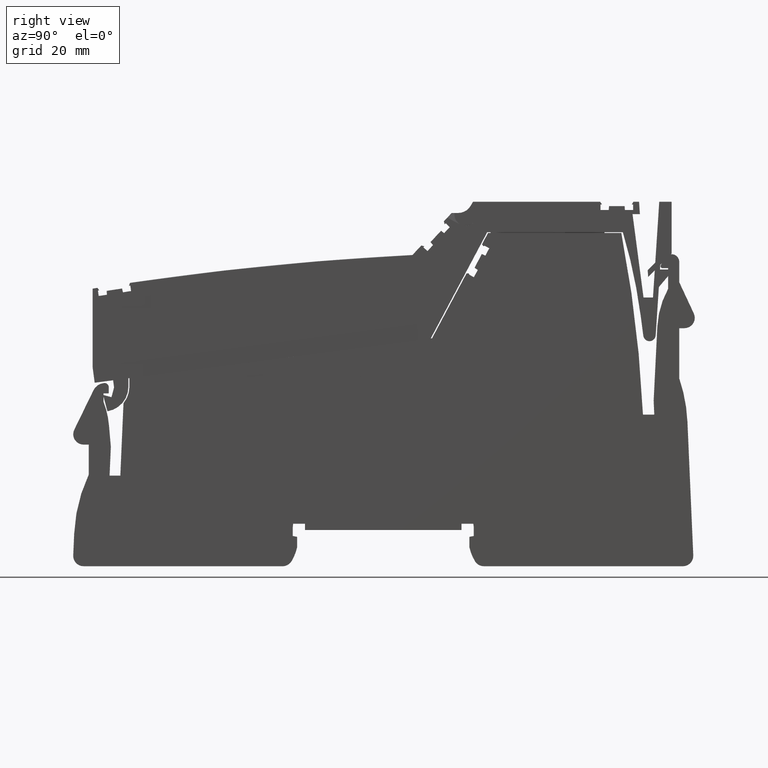
[diagram: clean part render]
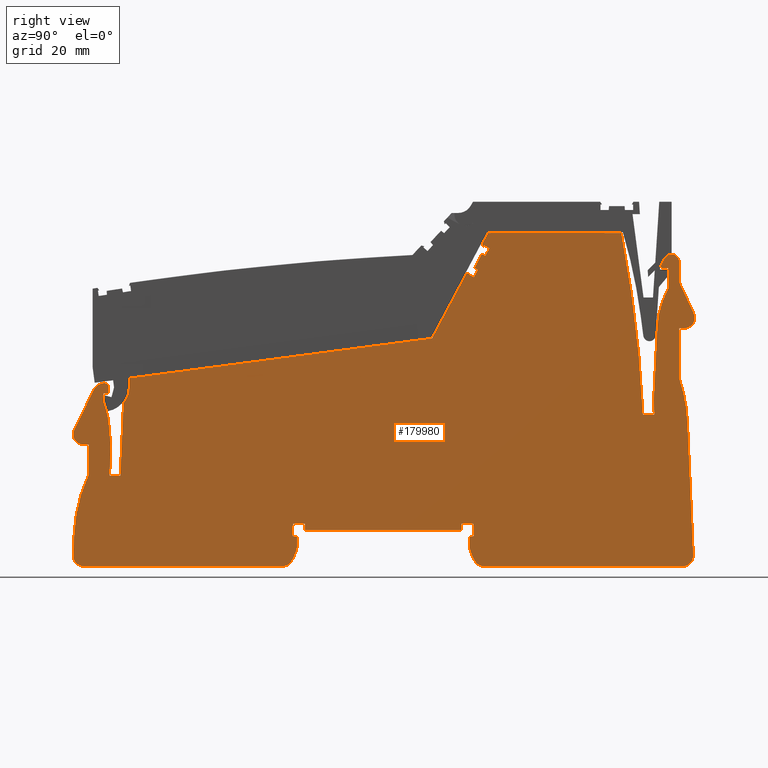
[diagram: same view with one face highlighted and labeled with its STEP entity id]
A machine part, right view. The second image highlights one B-rep face of the part: STEP entity #179980.
In plain terms, the highlighted planar face has unit normal (-1, 0, 0).
Its self-contained STEP definition (entity closure, byte-faithful):
#173810=CARTESIAN_POINT('',(241.895261249458,-27.1848492122465,12.15));
#173820=DIRECTION('',(0.,0.,-1.));
#173830=DIRECTION('',(-1.,1.05193631583234E-14,0.));
#173840=AXIS2_PLACEMENT_3D('',#173810,#173820,#173830);
#173850=PLANE('',#173840);
#173860=CARTESIAN_POINT('',(289.962081648071,-8.83061094931154E-13,12.15
));
#173870=DIRECTION('',(-0.42261826174069,0.906307787036654,
-3.12945253687874E-45));
#173880=VECTOR('',#173870,1.);
#173890=LINE('',#173860,#173880);
#173900=CARTESIAN_POINT('',(296.541235782933,-14.1090415733122,12.15));
#173910=VERTEX_POINT('',#173900);
#173920=CARTESIAN_POINT('',(293.72862020886,-8.07736800997913,12.15));
#173930=VERTEX_POINT('',#173920);
#173940=EDGE_CURVE('',#173910,#173930,#173890,.T.);
#173950=ORIENTED_EDGE('',*,*,#173940,.T.);
#173960=CARTESIAN_POINT('',(294.72862020886,-14.9542780967936,12.15));
#173970=DIRECTION('',(1.61619556307429E-58,1.53640057743941E-44,1.));
#173980=DIRECTION('',(1.,-1.05193631583234E-14,0.));
#173990=AXIS2_PLACEMENT_3D('',#173960,#173970,#173980);
#174000=CIRCLE('',#173990,2.);
#174010=CARTESIAN_POINT('',(294.72862020886,-16.9542780967936,12.15));
#174020=VERTEX_POINT('',#174010);
#174030=EDGE_CURVE('',#174020,#173910,#174000,.T.);
#174040=ORIENTED_EDGE('',*,*,#174030,.T.);
#174050=CARTESIAN_POINT('',(4.18507689651115E-13,-16.9542780967905,12.15
));
#174060=DIRECTION('',(1.,-1.05193631583234E-14,0.));
#174070=VECTOR('',#174060,1.);
#174080=LINE('',#174050,#174070);
#174090=CARTESIAN_POINT('',(293.72862020886,-16.9542780967935,12.15));
#174100=VERTEX_POINT('',#174090);
#174110=EDGE_CURVE('',#174100,#174020,#174080,.T.);
#174120=ORIENTED_EDGE('',*,*,#174110,.T.);
#174130=CARTESIAN_POINT('',(293.72862020886,-9.22682681901923E-13,12.15)
);
#174140=DIRECTION('',(-1.05193631583234E-14,-1.,3.45296882763315E-45));
#174150=VECTOR('',#174140,1.);
#174160=LINE('',#174130,#174150);
#174170=CARTESIAN_POINT('',(293.72862020886,-26.6633289582241,12.15));
#174180=VERTEX_POINT('',#174170);
#174190=EDGE_CURVE('',#174100,#174180,#174160,.T.);
#174200=ORIENTED_EDGE('',*,*,#174190,.F.);
#174210=CARTESIAN_POINT('',(265.338905386229,-36.3599310584288,12.15));
#174220=DIRECTION('',(1.61619556307429E-58,1.53640057743941E-44,1.));
#174230=DIRECTION('',(1.,-1.05193631583234E-14,0.));
#174240=AXIS2_PLACEMENT_3D('',#174210,#174220,#174230);
#174250=CIRCLE('',#174240,29.9999999999995);
#174260=CARTESIAN_POINT('',(295.310352033685,-35.0513494374691,12.15));
#174270=VERTEX_POINT('',#174260);
#174280=EDGE_CURVE('',#174270,#174180,#174250,.T.);
#174290=ORIENTED_EDGE('',*,*,#174280,.T.);
#174300=CARTESIAN_POINT('',(296.504588542813,-62.4038624519246,12.15));
#174310=DIRECTION('',(-0.0436193873653253,0.999048221581858,
-1.53493826452818E-44));
#174320=VECTOR('',#174310,1.);
#174330=LINE('',#174300,#174320);
#174340=CARTESIAN_POINT('',(296.437489395879,-60.8670393220629,12.15));
#174350=VERTEX_POINT('',#174340);
#174360=EDGE_CURVE('',#174350,#174270,#174330,.T.);
#174370=ORIENTED_EDGE('',*,*,#174360,.T.);
#174380=CARTESIAN_POINT('',(294.439392952716,-60.9542780967935,12.15));
#174390=DIRECTION('',(-1.61619556307429E-58,-1.53640057743941E-44,-1.));
#174400=DIRECTION('',(-1.,1.05193631583234E-14,0.));
#174410=AXIS2_PLACEMENT_3D('',#174380,#174390,#174400);
#174420=CIRCLE('',#174410,2.);
#174430=CARTESIAN_POINT('',(294.439392952715,-62.9542780967935,12.15));
#174440=VERTEX_POINT('',#174430);
#174450=EDGE_CURVE('',#174350,#174440,#174420,.T.);
#174460=ORIENTED_EDGE('',*,*,#174450,.F.);
#174470=CARTESIAN_POINT('',(217.456642799386,-62.9542780967926,12.15));
#174480=DIRECTION('',(1.,-1.05193631583234E-14,0.));
#174490=VECTOR('',#174480,1.);
#174500=LINE('',#174470,#174490);
#174510=CARTESIAN_POINT('',(255.962554944728,-62.9542780967931,12.15));
#174520=VERTEX_POINT('',#174510);
#174530=EDGE_CURVE('',#174520,#174440,#174500,.T.);
#174540=ORIENTED_EDGE('',*,*,#174530,.T.);
#174550=CARTESIAN_POINT('',(255.962554944728,-60.9542780967931,12.15));
#174560=DIRECTION('',(1.61619556307429E-58,1.53640057743941E-44,1.));
#174570=DIRECTION('',(1.,-1.05193631583234E-14,0.));
#174580=AXIS2_PLACEMENT_3D('',#174550,#174560,#174570);
#174590=CIRCLE('',#174580,2.);
#174600=CARTESIAN_POINT('',(254.238270874293,-61.9676114301263,12.15));
#174610=VERTEX_POINT('',#174600);
#174620=EDGE_CURVE('',#174610,#174520,#174590,.T.);
#174630=ORIENTED_EDGE('',*,*,#174620,.T.);
#174640=CARTESIAN_POINT('',(262.428620208859,-57.1542780967934,12.15));
#174650=DIRECTION('',(1.61619556307429E-58,1.53640057743941E-44,1.));
#174660=DIRECTION('',(1.,-1.05193631583234E-14,0.));
#174670=AXIS2_PLACEMENT_3D('',#174640,#174650,#174660);
#174680=CIRCLE('',#174670,9.5);
#174690=CARTESIAN_POINT('',(253.178620208859,-59.3193416062547,12.15));
#174700=VERTEX_POINT('',#174690);
#174710=EDGE_CURVE('',#174700,#174610,#174680,.T.);
#174720=ORIENTED_EDGE('',*,*,#174710,.T.);
#174730=CARTESIAN_POINT('',(253.178620208859,-62.4038624519246,12.15));
#174740=DIRECTION('',(-1.05193631583234E-14,-1.,1.53640057743941E-44));
#174750=VECTOR('',#174740,1.);
#174760=LINE('',#174730,#174750);
#174770=CARTESIAN_POINT('',(253.178620208859,-57.2709062822759,12.15));
#174780=VERTEX_POINT('',#174770);
#174790=EDGE_CURVE('',#174780,#174700,#174760,.T.);
#174800=ORIENTED_EDGE('',*,*,#174790,.T.);
#174810=CARTESIAN_POINT('',(217.456642799386,-64.21455529414,12.15));
#174820=DIRECTION('',(-0.981627183447664,-0.190808995376544,
2.93159050677172E-45));
#174830=VECTOR('',#174820,1.);
#174840=LINE('',#174810,#174830);
#174850=CARTESIAN_POINT('',(254.028620208859,-57.1056830195089,12.15));
#174860=VERTEX_POINT('',#174850);
#174870=EDGE_CURVE('',#174860,#174780,#174840,.T.);
#174880=ORIENTED_EDGE('',*,*,#174870,.T.);
#174890=CARTESIAN_POINT('',(254.028620208859,-62.4038624519246,12.15));
#174900=DIRECTION('',(-1.05193631583234E-14,-1.,1.53640057743941E-44));
#174910=VECTOR('',#174900,1.);
#174920=LINE('',#174890,#174910);
#174930=CARTESIAN_POINT('',(254.028620208859,-55.9542780967934,12.15));
#174940=VERTEX_POINT('',#174930);
#174950=EDGE_CURVE('',#174940,#174860,#174920,.T.);
#174960=ORIENTED_EDGE('',*,*,#174950,.T.);
#174970=CARTESIAN_POINT('',(245.528620208859,-55.9542780967933,12.15));
#174980=DIRECTION('',(1.61619556307429E-58,1.53640057743941E-44,1.));
#174990=DIRECTION('',(1.,-3.15544362088405E-30,-1.61619556307429E-58));
#175000=AXIS2_PLACEMENT_3D('',#174970,#174980,#174990);
#175010=CIRCLE('',#175000,8.50000000000005);
#175020=CARTESIAN_POINT('',(253.943488003424,-54.7542780967933,12.15));
#175030=VERTEX_POINT('',#175020);
#175040=EDGE_CURVE('',#174940,#175030,#175010,.T.);
#175050=ORIENTED_EDGE('',*,*,#175040,.F.);
#175060=CARTESIAN_POINT('',(2.08757622664903E-14,-54.7542780967906,12.15
));
#175070=DIRECTION('',(1.,-1.05193631583234E-14,-5.15325044811805E-147));
#175080=VECTOR('',#175070,1.);
#175090=LINE('',#175060,#175080);
#175100=CARTESIAN_POINT('',(251.653620208859,-54.7542780967933,12.15));
#175110=VERTEX_POINT('',#175100);
#175120=EDGE_CURVE('',#175110,#175030,#175090,.T.);
#175130=ORIENTED_EDGE('',*,*,#175120,.T.);
#175140=CARTESIAN_POINT('',(251.653620208859,-62.4038624519246,12.15));
#175150=DIRECTION('',(3.15544362088405E-30,1.,-1.53640057743941E-44));
#175160=VECTOR('',#175150,1.);
#175170=LINE('',#175140,#175160);
#175180=CARTESIAN_POINT('',(251.653620208859,-55.9542780967933,12.15));
#175190=VERTEX_POINT('',#175180);
#175200=EDGE_CURVE('',#175190,#175110,#175170,.T.);
#175210=ORIENTED_EDGE('',*,*,#175200,.T.);
#175220=CARTESIAN_POINT('',(217.456642799386,-55.9542780967933,12.15));
#175230=DIRECTION('',(1.,-3.15544362088405E-30,-1.61619556307429E-58));
#175240=VECTOR('',#175230,1.);
#175250=LINE('',#175220,#175240);
#175260=CARTESIAN_POINT('',(221.403620208859,-55.9542780967933,12.15));
#175270=VERTEX_POINT('',#175260);
#175280=EDGE_CURVE('',#175270,#175190,#175250,.T.);
#175290=ORIENTED_EDGE('',*,*,#175280,.T.);
#175300=CARTESIAN_POINT('',(221.403620208859,-62.4038624519246,12.15));
#175310=DIRECTION('',(-3.15544362088405E-30,-1.,1.53640057743941E-44));
#175320=VECTOR('',#175310,1.);
#175330=LINE('',#175300,#175320);
#175340=CARTESIAN_POINT('',(221.403620208859,-54.7542780967939,12.15));
#175350=VERTEX_POINT('',#175340);
#175360=EDGE_CURVE('',#175350,#175270,#175330,.T.);
#175370=ORIENTED_EDGE('',*,*,#175360,.T.);
#175380=CARTESIAN_POINT('',(2.08757622664802E-14,-54.7542780967916,12.15
));
#175390=DIRECTION('',(1.,-1.05193631583234E-14,-5.15325044811805E-147));
#175400=VECTOR('',#175390,1.);
#175410=LINE('',#175380,#175400);
#175420=CARTESIAN_POINT('',(219.113752414295,-54.7542780967939,12.15));
#175430=VERTEX_POINT('',#175420);
#175440=EDGE_CURVE('',#175430,#175350,#175410,.T.);
#175450=ORIENTED_EDGE('',*,*,#175440,.T.);
#175460=CARTESIAN_POINT('',(227.528620208859,-55.9542780967933,12.15));
#175470=DIRECTION('',(1.61619556307429E-58,1.53640057743941E-44,1.));
#175480=DIRECTION('',(1.,-3.15544362088405E-30,-1.61619556307429E-58));
#175490=AXIS2_PLACEMENT_3D('',#175460,#175470,#175480);
#175500=CIRCLE('',#175490,8.49999999999999);
#175510=CARTESIAN_POINT('',(219.028620208859,-55.9542780967932,12.15));
#175520=VERTEX_POINT('',#175510);
#175530=EDGE_CURVE('',#175430,#175520,#175500,.T.);
#175540=ORIENTED_EDGE('',*,*,#175530,.F.);
#175550=CARTESIAN_POINT('',(219.028620208859,-62.4038624519246,12.15));
#175560=DIRECTION('',(1.05193631583234E-14,1.,-1.53640057743941E-44));
#175570=VECTOR('',#175560,1.);
#175580=LINE('',#175550,#175570);
#175590=CARTESIAN_POINT('',(219.028620208859,-57.1056830195088,12.15));
#175600=VERTEX_POINT('',#175590);
#175610=EDGE_CURVE('',#175600,#175520,#175580,.T.);
#175620=ORIENTED_EDGE('',*,*,#175610,.T.);
#175630=CARTESIAN_POINT('',(217.456642799386,-56.8001215646979,12.15));
#175640=DIRECTION('',(-0.981627183447658,0.190808995376576,
-2.93159050677189E-45));
#175650=VECTOR('',#175640,1.);
#175660=LINE('',#175630,#175650);
#175670=CARTESIAN_POINT('',(219.878620208859,-57.2709062822759,12.15));
#175680=VERTEX_POINT('',#175670);
#175690=EDGE_CURVE('',#175680,#175600,#175660,.T.);
#175700=ORIENTED_EDGE('',*,*,#175690,.T.);
#175710=CARTESIAN_POINT('',(219.878620208859,-62.4038624519246,12.15));
#175720=DIRECTION('',(1.05193631583234E-14,1.,-1.53640057743941E-44));
#175730=VECTOR('',#175720,1.);
#175740=LINE('',#175710,#175730);
#175750=CARTESIAN_POINT('',(219.878620208859,-59.319341606254,12.15));
#175760=VERTEX_POINT('',#175750);
#175770=EDGE_CURVE('',#175760,#175680,#175740,.T.);
#175780=ORIENTED_EDGE('',*,*,#175770,.T.);
#175790=CARTESIAN_POINT('',(210.628620208859,-57.1542780967929,12.15));
#175800=DIRECTION('',(-1.61619556307429E-58,-1.53640057743941E-44,-1.));
#175810=DIRECTION('',(-1.,1.05193631583234E-14,0.));
#175820=AXIS2_PLACEMENT_3D('',#175790,#175800,#175810);
#175830=CIRCLE('',#175820,9.5);
#175840=CARTESIAN_POINT('',(218.818969543425,-61.9676114301259,12.15));
#175850=VERTEX_POINT('',#175840);
#175860=EDGE_CURVE('',#175760,#175850,#175830,.T.);
#175870=ORIENTED_EDGE('',*,*,#175860,.F.);
#175880=CARTESIAN_POINT('',(217.09468547299,-60.9542780967926,12.15));
#175890=DIRECTION('',(-1.61619556307429E-58,-1.53640057743941E-44,-1.));
#175900=DIRECTION('',(-1.,1.05193631583234E-14,0.));
#175910=AXIS2_PLACEMENT_3D('',#175880,#175890,#175900);
#175920=CIRCLE('',#175910,2.);
#175930=CARTESIAN_POINT('',(217.09468547299,-62.9542780967931,12.15));
#175940=VERTEX_POINT('',#175930);
#175950=EDGE_CURVE('',#175850,#175940,#175920,.T.);
#175960=ORIENTED_EDGE('',*,*,#175950,.F.);
#175970=CARTESIAN_POINT('',(217.456642799386,-62.9542780967931,12.15));
#175980=DIRECTION('',(1.,-1.05193631583234E-14,0.));
#175990=VECTOR('',#175980,1.);
#176000=LINE('',#175970,#175990);
#176010=CARTESIAN_POINT('',(178.617847465003,-62.9542780967927,12.15));
#176020=VERTEX_POINT('',#176010);
#176030=EDGE_CURVE('',#176020,#175940,#176000,.T.);
#176040=ORIENTED_EDGE('',*,*,#176030,.T.);
#176050=CARTESIAN_POINT('',(178.617847465003,-60.9542780967927,12.15));
#176060=DIRECTION('',(-1.61619556307429E-58,-1.53640057743941E-44,-1.));
#176070=DIRECTION('',(-1.,3.15544362088405E-30,1.61619556307429E-58));
#176080=AXIS2_PLACEMENT_3D('',#176050,#176060,#176070);
#176090=CIRCLE('',#176080,2.);
#176100=CARTESIAN_POINT('',(176.619751021839,-60.8670393220619,12.15));
#176110=VERTEX_POINT('',#176100);
#176120=EDGE_CURVE('',#176020,#176110,#176090,.T.);
#176130=ORIENTED_EDGE('',*,*,#176120,.F.);
#176140=CARTESIAN_POINT('',(176.552651874906,-62.4038624519246,12.15));
#176150=DIRECTION('',(-0.0436193873653932,-0.999048221581855,
1.53493826452818E-44));
#176160=VECTOR('',#176150,1.);
#176170=LINE('',#176140,#176160);
#176180=CARTESIAN_POINT('',(176.802689507967,-56.6770591260141,12.15));
#176190=VERTEX_POINT('',#176180);
#176200=EDGE_CURVE('',#176190,#176110,#176170,.T.);
#176210=ORIENTED_EDGE('',*,*,#176200,.T.);
#176220=CARTESIAN_POINT('',(206.774136155416,-57.9856407469757,12.15));
#176230=DIRECTION('',(1.61619556307429E-58,1.53640057743941E-44,1.));
#176240=DIRECTION('',(1.,-1.05193631583234E-14,0.));
#176250=AXIS2_PLACEMENT_3D('',#176220,#176230,#176240);
#176260=CIRCLE('',#176250,29.9999999999933);
#176270=CARTESIAN_POINT('',(179.617847465003,-45.2366806104564,12.15));
#176280=VERTEX_POINT('',#176270);
#176290=EDGE_CURVE('',#176280,#176190,#176260,.T.);
#176300=ORIENTED_EDGE('',*,*,#176290,.T.);
#176310=CARTESIAN_POINT('',(179.617847465004,2.77689976867609E-13,12.15)
);
#176320=DIRECTION('',(-1.05193631583234E-14,-1.,3.45296882763315E-45));
#176330=VECTOR('',#176320,1.);
#176340=LINE('',#176310,#176330);
#176350=CARTESIAN_POINT('',(179.617847465003,-39.4542780967923,12.15));
#176360=VERTEX_POINT('',#176350);
#176370=EDGE_CURVE('',#176360,#176280,#176340,.T.);
#176380=ORIENTED_EDGE('',*,*,#176370,.T.);
#176390=CARTESIAN_POINT('',(1.8182201858884E-13,-39.4542780967904,12.15)
);
#176400=DIRECTION('',(-1.,1.05193631583234E-14,0.));
#176410=VECTOR('',#176400,1.);
#176420=LINE('',#176390,#176410);
#176430=CARTESIAN_POINT('',(178.617847465008,-39.4542780967917,12.15));
#176440=VERTEX_POINT('',#176430);
#176450=EDGE_CURVE('',#176360,#176440,#176420,.T.);
#176460=ORIENTED_EDGE('',*,*,#176450,.F.);
#176470=CARTESIAN_POINT('',(178.617847465008,-37.4542780967923,12.15));
#176480=DIRECTION('',(1.61619556307429E-58,1.53640057743941E-44,1.));
#176490=DIRECTION('',(1.,-1.05193631583234E-14,0.));
#176500=AXIS2_PLACEMENT_3D('',#176470,#176480,#176490);
#176510=CIRCLE('',#176500,2.);
#176520=CARTESIAN_POINT('',(176.81959323638,-36.5789029033906,12.15));
#176530=VERTEX_POINT('',#176520);
#176540=EDGE_CURVE('',#176530,#176440,#176510,.T.);
#176550=ORIENTED_EDGE('',*,*,#176540,.T.);
#176560=CARTESIAN_POINT('',(194.625898759662,1.19814835000352E-13,12.15)
);
#176570=DIRECTION('',(-0.437687596700834,-0.899127114313793,
3.10465789780529E-45));
#176580=VECTOR('',#176570,1.);
#176590=LINE('',#176560,#176580);
#176600=CARTESIAN_POINT('',(180.530802423075,-28.9550889506993,12.15));
#176610=VERTEX_POINT('',#176600);
#176620=EDGE_CURVE('',#176610,#176530,#176590,.T.);
#176630=ORIENTED_EDGE('',*,*,#176620,.T.);
#176640=CARTESIAN_POINT('',(182.778620208859,-30.0493079424514,12.15));
#176650=DIRECTION('',(1.61619556307429E-58,1.53640057743941E-44,1.));
#176660=DIRECTION('',(1.,-1.05193631583234E-14,0.));
#176670=AXIS2_PLACEMENT_3D('',#176640,#176650,#176660);
#176680=CIRCLE('',#176670,2.5);
#176690=CARTESIAN_POINT('',(182.452304728309,-27.5706957890168,12.15));
#176700=VERTEX_POINT('',#176690);
#176710=EDGE_CURVE('',#176700,#176610,#176680,.T.);
#176720=ORIENTED_EDGE('',*,*,#176710,.T.);
#176730=CARTESIAN_POINT('',(217.456642799386,-22.9622872555667,12.15));
#176740=DIRECTION('',(-0.991444861373813,-0.130526192220033,
2.00540517097842E-45));
#176750=VECTOR('',#176740,1.);
#176760=LINE('',#176730,#176750);
#176770=CARTESIAN_POINT('',(182.574199255083,-27.5546480701248,12.15));
#176780=VERTEX_POINT('',#176770);
#176790=EDGE_CURVE('',#176780,#176700,#176760,.T.);
#176800=ORIENTED_EDGE('',*,*,#176790,.T.);
#176810=CARTESIAN_POINT('',(182.678620208859,-28.3478039592238,12.15));
#176820=DIRECTION('',(1.61619556307429E-58,1.53640057743941E-44,1.));
#176830=DIRECTION('',(1.,-1.05193631583234E-14,0.));
#176840=AXIS2_PLACEMENT_3D('',#176810,#176820,#176830);
#176850=CIRCLE('',#176840,0.8);
#176860=CARTESIAN_POINT('',(183.478620208859,-28.3478039592239,12.15));
#176870=VERTEX_POINT('',#176860);
#176880=EDGE_CURVE('',#176870,#176780,#176850,.T.);
#176890=ORIENTED_EDGE('',*,*,#176880,.T.);
#176900=CARTESIAN_POINT('',(183.478620208859,-62.4038624519246,12.15));
#176910=DIRECTION('',(1.05193631583234E-14,1.,-1.53640057743941E-44));
#176920=VECTOR('',#176910,1.);
#176930=LINE('',#176900,#176920);
#176940=CARTESIAN_POINT('',(183.478620208859,-29.5542780967954,12.15));
#176950=VERTEX_POINT('',#176940);
#176960=EDGE_CURVE('',#176950,#176870,#176930,.T.);
#176970=ORIENTED_EDGE('',*,*,#176960,.T.);
#176980=CARTESIAN_POINT('',(217.456642799386,-29.5542780967958,12.15));
#176990=DIRECTION('',(1.,-1.05193631583234E-14,0.));
#177000=VECTOR('',#176990,1.);
#177010=LINE('',#176980,#177000);
#177020=CARTESIAN_POINT('',(182.478620208859,-29.5542780967954,12.15));
#177030=VERTEX_POINT('',#177020);
#177040=EDGE_CURVE('',#177030,#176950,#177010,.T.);
#177050=ORIENTED_EDGE('',*,*,#177040,.T.);
#177060=CARTESIAN_POINT('',(182.478620208859,-62.4038624519246,12.15));
#177070=DIRECTION('',(1.05193631583234E-14,1.,-1.53640057743941E-44));
#177080=VECTOR('',#177070,1.);
#177090=LINE('',#177060,#177080);
#177100=CARTESIAN_POINT('',(182.478620208859,-31.1739986024548,12.15));
#177110=VERTEX_POINT('',#177100);
#177120=EDGE_CURVE('',#177110,#177030,#177090,.T.);
#177130=ORIENTED_EDGE('',*,*,#177120,.T.);
#177140=CARTESIAN_POINT('',(166.886113765894,-37.1542780968341,12.15));
#177150=DIRECTION('',(1.61619556307429E-58,1.53640057743941E-44,1.));
#177160=DIRECTION('',(1.,-1.05193631583234E-14,0.));
#177170=AXIS2_PLACEMENT_3D('',#177140,#177150,#177160);
#177180=CIRCLE('',#177170,16.7000000001442);
#177190=CARTESIAN_POINT('',(183.522565224167,-35.6987771929367,12.15));
#177200=VERTEX_POINT('',#177190);
#177210=EDGE_CURVE('',#177200,#177110,#177180,.T.);
#177220=ORIENTED_EDGE('',*,*,#177210,.T.);
#177230=CARTESIAN_POINT('',(185.85895744282,-62.4038624519246,12.15));
#177240=DIRECTION('',(-0.0871557427476136,0.996194698091749,
-1.53055410939024E-44));
#177250=VECTOR('',#177240,1.);
#177260=LINE('',#177230,#177250);
#177270=CARTESIAN_POINT('',(183.886833925695,-39.8623875036677,12.15));
#177280=VERTEX_POINT('',#177270);
#177290=EDGE_CURVE('',#177280,#177200,#177260,.T.);
#177300=ORIENTED_EDGE('',*,*,#177290,.T.);
#177310=CARTESIAN_POINT('',(182.902651874904,-62.4038624519246,12.15));
#177320=DIRECTION('',(0.0436193873653877,0.999048221581856,
-1.53493826452818E-44));
#177330=VECTOR('',#177320,1.);
#177340=LINE('',#177310,#177330);
#177350=CARTESIAN_POINT('',(183.642686709758,-45.4542780967933,12.15));
#177360=VERTEX_POINT('',#177350);
#177370=EDGE_CURVE('',#177360,#177280,#177340,.T.);
#177380=ORIENTED_EDGE('',*,*,#177370,.T.);
#177390=CARTESIAN_POINT('',(217.456642799386,-45.4542780967936,12.15));
#177400=DIRECTION('',(-1.,1.05193631583234E-14,0.));
#177410=VECTOR('',#177400,1.);
#177420=LINE('',#177390,#177410);
#177430=CARTESIAN_POINT('',(185.720436069614,-45.4542780967933,12.15));
#177440=VERTEX_POINT('',#177430);
#177450=EDGE_CURVE('',#177440,#177360,#177420,.T.);
#177460=ORIENTED_EDGE('',*,*,#177450,.T.);
#177470=CARTESIAN_POINT('',(184.980401234762,-62.4038624519246,12.15));
#177480=DIRECTION('',(-0.0436193873653465,-0.999048221581857,
1.53493826452818E-44));
#177490=VECTOR('',#177480,1.);
#177500=LINE('',#177470,#177490);
#177510=CARTESIAN_POINT('',(186.331435499458,-31.4600904054343,12.15));
#177520=VERTEX_POINT('',#177510);
#177530=EDGE_CURVE('',#177520,#177440,#177500,.T.);
#177540=ORIENTED_EDGE('',*,*,#177530,.T.);
#177550=CARTESIAN_POINT('',(182.478620208859,-28.2732715626826,12.15));
#177560=DIRECTION('',(1.61619556307429E-58,1.53640057743941E-44,1.));
#177570=DIRECTION('',(1.,-3.15544362088405E-30,-1.61619556307429E-58));
#177580=AXIS2_PLACEMENT_3D('',#177550,#177560,#177570);
#177590=CIRCLE('',#177580,4.99999999999888);
#177600=CARTESIAN_POINT('',(187.478620208858,-28.2732715626826,12.15));
#177610=VERTEX_POINT('',#177600);
#177620=EDGE_CURVE('',#177520,#177610,#177590,.T.);
#177630=ORIENTED_EDGE('',*,*,#177620,.F.);
#177640=CARTESIAN_POINT('',(187.478620208858,-62.4038624519246,12.15));
#177650=DIRECTION('',(-3.15544362088405E-30,-1.,1.53640057743941E-44));
#177660=VECTOR('',#177650,1.);
#177670=LINE('',#177640,#177660);
#177680=CARTESIAN_POINT('',(187.478620208858,-26.6063801141664,12.15));
#177690=VERTEX_POINT('',#177680);
#177700=EDGE_CURVE('',#177690,#177610,#177670,.T.);
#177710=ORIENTED_EDGE('',*,*,#177700,.T.);
#177720=CARTESIAN_POINT('',(217.456642799386,-22.6596985673925,12.15));
#177730=DIRECTION('',(0.991444861373812,0.130526192220039,
-2.00540517097852E-45));
#177740=VECTOR('',#177730,1.);
#177750=LINE('',#177720,#177740);
#177760=CARTESIAN_POINT('',(245.956559916687,-18.9076132978663,12.15));
#177770=VERTEX_POINT('',#177760);
#177780=EDGE_CURVE('',#177690,#177770,#177750,.T.);
#177790=ORIENTED_EDGE('',*,*,#177780,.F.);
#177800=CARTESIAN_POINT('',(222.829193999581,-62.4038624519246,12.15));
#177810=DIRECTION('',(-0.469471562785825,-0.882947592858962,
1.35656119151725E-44));
#177820=VECTOR('',#177810,1.);
#177830=LINE('',#177800,#177820);
#177840=CARTESIAN_POINT('',(252.619553665123,-6.37634461674387,12.15));
#177850=VERTEX_POINT('',#177840);
#177860=EDGE_CURVE('',#177850,#177770,#177830,.T.);
#177870=ORIENTED_EDGE('',*,*,#177860,.T.);
#177880=CARTESIAN_POINT('',(217.456642799386,-7.60426052174314,12.15));
#177890=DIRECTION('',(-0.999390827019098,-0.0348994967024426,
5.36196068859938E-46));
#177900=VECTOR('',#177890,1.);
#177910=LINE('',#177880,#177900);
#177920=CARTESIAN_POINT('',(252.971522788557,-6.36405358411627,12.15));
#177930=VERTEX_POINT('',#177920);
#177940=EDGE_CURVE('',#177930,#177850,#177910,.T.);
#177950=ORIENTED_EDGE('',*,*,#177940,.T.);
#177960=CARTESIAN_POINT('',(252.976757713063,-6.51396220816912,12.15));
#177970=DIRECTION('',(1.61619556307429E-58,1.53640057743941E-44,1.));
#177980=DIRECTION('',(1.,-3.15544362088405E-30,-1.61619556307429E-58));
#177990=AXIS2_PLACEMENT_3D('',#177960,#177970,#177980);
#178000=CIRCLE('',#177990,0.149999999999978);
#178010=CARTESIAN_POINT('',(253.109199851991,-6.58438294258699,12.15));
#178020=VERTEX_POINT('',#178010);
#178030=EDGE_CURVE('',#178020,#177930,#178000,.T.);
#178040=ORIENTED_EDGE('',*,*,#178030,.T.);
#178050=CARTESIAN_POINT('',(223.429456126323,-62.4038624519246,12.15));
#178060=DIRECTION('',(0.469471562787351,0.882947592858151,
-1.35656119151601E-44));
#178070=VECTOR('',#178060,1.);
#178080=LINE('',#178050,#178070);
#178090=CARTESIAN_POINT('',(253.103331457457,-6.59541978749768,12.15));
#178100=VERTEX_POINT('',#178090);
#178110=EDGE_CURVE('',#178100,#178020,#178080,.T.);
#178120=ORIENTED_EDGE('',*,*,#178110,.T.);
#178130=CARTESIAN_POINT('',(217.456642799386,12.3582607794983,12.15));
#178140=DIRECTION('',(-0.882947592858932,0.469471562785882,
-7.21296380155597E-45));
#178150=VECTOR('',#178140,1.);
#178160=LINE('',#178130,#178150);
#178170=CARTESIAN_POINT('',(254.048085381816,-7.09775435967857,12.15));
#178180=VERTEX_POINT('',#178170);
#178190=EDGE_CURVE('',#178180,#178100,#178160,.T.);
#178200=ORIENTED_EDGE('',*,*,#178190,.T.);
#178210=CARTESIAN_POINT('',(224.641306080665,-62.4038624519246,12.15));
#178220=DIRECTION('',(-0.469471562786064,-0.882947592858835,
1.35656119151706E-44));
#178230=VECTOR('',#178220,1.);
#178240=LINE('',#178210,#178230);
#178250=CARTESIAN_POINT('',(254.797776775254,-5.68778991519793,12.15));
#178260=VERTEX_POINT('',#178250);
#178270=EDGE_CURVE('',#178260,#178180,#178240,.T.);
#178280=ORIENTED_EDGE('',*,*,#178270,.T.);
#178290=CARTESIAN_POINT('',(217.456642799386,18.5618260273501,12.15));
#178300=DIRECTION('',(0.838670567945281,-0.544639035015247,
8.36783727893455E-45));
#178310=VECTOR('',#178300,1.);
#178320=LINE('',#178290,#178310);
#178330=CARTESIAN_POINT('',(254.166371160303,-5.27775031446128,12.15));
#178340=VERTEX_POINT('',#178330);
#178350=EDGE_CURVE('',#178340,#178260,#178320,.T.);
#178360=ORIENTED_EDGE('',*,*,#178350,.T.);
#178370=CARTESIAN_POINT('',(223.791878542665,-62.4038624519246,12.15));
#178380=DIRECTION('',(-0.469471562785857,-0.882947592858945,
1.35656119151723E-44));
#178390=VECTOR('',#178380,1.);
#178400=LINE('',#178370,#178390);
#178410=CARTESIAN_POINT('',(255.574785848661,-2.62890753588448,12.15));
#178420=VERTEX_POINT('',#178410);
#178430=EDGE_CURVE('',#178420,#178340,#178400,.T.);
#178440=ORIENTED_EDGE('',*,*,#178430,.T.);
#178450=CARTESIAN_POINT('',(217.456642799386,13.5512842292079,12.15));
#178460=DIRECTION('',(-0.92050485345244,0.390731128489274,
-6.00319531434459E-45));
#178470=VECTOR('',#178460,1.);
#178480=LINE('',#178450,#178470);
#178490=CARTESIAN_POINT('',(256.267801622998,-2.9230752793269,12.15));
#178500=VERTEX_POINT('',#178490);
#178510=EDGE_CURVE('',#178500,#178420,#178480,.T.);
#178520=ORIENTED_EDGE('',*,*,#178510,.T.);
#178530=CARTESIAN_POINT('',(224.641306080672,-62.4038624519246,12.15));
#178540=DIRECTION('',(-0.469471562785973,-0.882947592858883,
1.35656119151713E-44));
#178550=VECTOR('',#178540,1.);
#178560=LINE('',#178530,#178550);
#178570=CARTESIAN_POINT('',(257.017493016437,-1.51311083484589,12.15));
#178580=VERTEX_POINT('',#178570);
#178590=EDGE_CURVE('',#178580,#178500,#178560,.T.);
#178600=ORIENTED_EDGE('',*,*,#178590,.T.);
#178610=CARTESIAN_POINT('',(217.456642799386,19.5217663500996,12.15));
#178620=DIRECTION('',(0.882947592858995,-0.469471562785762,
7.21296380155413E-45));
#178630=VECTOR('',#178620,1.);
#178640=LINE('',#178610,#178630);
#178650=CARTESIAN_POINT('',(256.072739092077,-1.01077626266511,12.15));
#178660=VERTEX_POINT('',#178650);
#178670=EDGE_CURVE('',#178660,#178580,#178640,.T.);
#178680=ORIENTED_EDGE('',*,*,#178670,.T.);
#178690=CARTESIAN_POINT('',(223.429456126156,-62.4038624519246,12.15));
#178700=DIRECTION('',(0.469471562789102,0.88294759285722,
-1.35656119151458E-44));
#178710=VECTOR('',#178700,1.);
#178720=LINE('',#178690,#178710);
#178730=CARTESIAN_POINT('',(256.066870697543,-1.02181310757579,12.15));
#178740=VERTEX_POINT('',#178730);
#178750=EDGE_CURVE('',#178740,#178660,#178720,.T.);
#178760=ORIENTED_EDGE('',*,*,#178750,.T.);
#178770=CARTESIAN_POINT('',(255.934428558614,-0.951392373157886,12.15));
#178780=DIRECTION('',(1.61619556307429E-58,1.53640057743941E-44,1.));
#178790=DIRECTION('',(1.,-3.15544362088405E-30,-1.61619556307429E-58));
#178800=AXIS2_PLACEMENT_3D('',#178770,#178780,#178790);
#178810=CIRCLE('',#178800,0.150000000000037);
#178820=CARTESIAN_POINT('',(255.80722134419,-1.03088026279289,12.15));
#178830=VERTEX_POINT('',#178820);
#178840=EDGE_CURVE('',#178830,#178740,#178810,.T.);
#178850=ORIENTED_EDGE('',*,*,#178840,.T.);
#178860=CARTESIAN_POINT('',(294.157316949413,-62.4038624519246,12.15));
#178870=DIRECTION('',(0.529919264232787,-0.848048096156687,
1.30294158463152E-44));
#178880=VECTOR('',#178870,1.);
#178890=LINE('',#178860,#178880);
#178900=CARTESIAN_POINT('',(255.62059243598,-0.73221157686584,12.15));
#178910=VERTEX_POINT('',#178900);
#178920=EDGE_CURVE('',#178910,#178830,#178890,.T.);
#178930=ORIENTED_EDGE('',*,*,#178920,.T.);
#178940=CARTESIAN_POINT('',(222.829193999575,-62.4038624519246,12.15));
#178950=DIRECTION('',(-0.46947156278591,-0.882947592858917,
1.35656119151718E-44));
#178960=VECTOR('',#178950,1.);
#178970=LINE('',#178940,#178960);
#178980=CARTESIAN_POINT('',(256.778620208859,1.44572190319512,12.15));
#178990=VERTEX_POINT('',#178980);
#179000=EDGE_CURVE('',#178990,#178910,#178970,.T.);
#179010=ORIENTED_EDGE('',*,*,#179000,.T.);
#179020=CARTESIAN_POINT('',(217.456642799386,1.44572190319553,12.15));
#179030=DIRECTION('',(-1.,1.05193631583234E-14,0.));
#179040=VECTOR('',#179030,1.);
#179050=LINE('',#179020,#179040);
#179060=CARTESIAN_POINT('',(282.529908005194,1.44572190319485,12.15));
#179070=VERTEX_POINT('',#179060);
#179080=EDGE_CURVE('',#179070,#178990,#179050,.T.);
#179090=ORIENTED_EDGE('',*,*,#179080,.T.);
#179100=CARTESIAN_POINT('',(42.7786202088593,-44.9542780967933,12.15));
#179110=DIRECTION('',(1.61619556307429E-58,1.53640057743941E-44,1.));
#179120=DIRECTION('',(1.,-3.15544362088405E-30,-1.61619556307429E-58));
#179130=AXIS2_PLACEMENT_3D('',#179100,#179110,#179120);
#179140=CIRCLE('',#179130,244.2);
#179150=CARTESIAN_POINT('',(286.717034567894,-33.6542780967933,12.15));
#179160=VERTEX_POINT('',#179150);
#179170=EDGE_CURVE('',#179160,#179070,#179140,.T.);
#179180=ORIENTED_EDGE('',*,*,#179170,.T.);
#179190=CARTESIAN_POINT('',(217.456642799386,-33.6542780967925,12.15));
#179200=DIRECTION('',(-1.,1.05193631583234E-14,0.));
#179210=VECTOR('',#179200,1.);
#179220=LINE('',#179190,#179210);
#179230=CARTESIAN_POINT('',(288.89935458164,-33.6542780967933,12.15));
#179240=VERTEX_POINT('',#179230);
#179250=EDGE_CURVE('',#179240,#179160,#179220,.T.);
#179260=ORIENTED_EDGE('',*,*,#179250,.T.);
#179270=CARTESIAN_POINT('',(290.154588542814,-62.4038624519246,12.15));
#179280=DIRECTION('',(0.0436193873653688,-0.999048221581856,
1.53493826452818E-44));
#179290=VECTOR('',#179280,1.);
#179300=LINE('',#179270,#179290);
#179310=CARTESIAN_POINT('',(288.781470035787,-30.9542780967943,12.15));
#179320=VERTEX_POINT('',#179310);
#179330=EDGE_CURVE('',#179320,#179240,#179300,.T.);
#179340=ORIENTED_EDGE('',*,*,#179330,.T.);
#179350=CARTESIAN_POINT('',(287.214385619435,-62.4038624519246,12.15));
#179360=DIRECTION('',(-0.0497667179338691,-0.998760869170439,
1.53449677611735E-44));
#179370=VECTOR('',#179360,1.);
#179380=LINE('',#179350,#179370);
#179390=CARTESIAN_POINT('',(289.495566915127,-16.6231739072977,12.15));
#179400=VERTEX_POINT('',#179390);
#179410=EDGE_CURVE('',#179400,#179320,#179380,.T.);
#179420=ORIENTED_EDGE('',*,*,#179410,.T.);
#179430=CARTESIAN_POINT('',(306.174873430273,-17.4542780967933,12.15));
#179440=DIRECTION('',(1.61619556307429E-58,1.53640057743941E-44,1.));
#179450=DIRECTION('',(1.,-1.05193631583234E-14,0.));
#179460=AXIS2_PLACEMENT_3D('',#179430,#179440,#179450);
#179470=CIRCLE('',#179460,16.6999999999999);
#179480=CARTESIAN_POINT('',(291.578620208859,-9.34013045847856,12.15));
#179490=VERTEX_POINT('',#179480);
#179500=EDGE_CURVE('',#179490,#179400,#179470,.T.);
#179510=ORIENTED_EDGE('',*,*,#179500,.T.);
#179520=CARTESIAN_POINT('',(291.578620208859,-62.4038624519246,12.15));
#179530=DIRECTION('',(-1.05193631583234E-14,-1.,1.53640057743941E-44));
#179540=VECTOR('',#179530,1.);
#179550=LINE('',#179520,#179540);
#179560=CARTESIAN_POINT('',(291.578620208859,-5.35427809679336,12.15));
#179570=VERTEX_POINT('',#179560);
#179580=EDGE_CURVE('',#179570,#179490,#179550,.T.);
#179590=ORIENTED_EDGE('',*,*,#179580,.T.);
#179600=CARTESIAN_POINT('',(217.456642799386,-5.35427809679258,12.15));
#179610=DIRECTION('',(1.,-1.05193631583234E-14,0.));
#179620=VECTOR('',#179610,1.);
#179630=LINE('',#179600,#179620);
#179640=CARTESIAN_POINT('',(290.512594805075,-5.35427809679334,12.15));
#179650=VERTEX_POINT('',#179640);
#179660=EDGE_CURVE('',#179650,#179570,#179630,.T.);
#179670=ORIENTED_EDGE('',*,*,#179660,.T.);
#179680=CARTESIAN_POINT('',(290.512594805075,-4.95427809679335,12.15));
#179690=DIRECTION('',(1.61619556307429E-58,1.53640057743941E-44,1.));
#179700=DIRECTION('',(1.,-1.05193631583234E-14,0.));
#179710=AXIS2_PLACEMENT_3D('',#179680,#179690,#179700);
#179720=CIRCLE('',#179710,0.4);
#179730=CARTESIAN_POINT('',(290.166184643561,-4.7542780967933,12.15));
#179740=VERTEX_POINT('',#179730);
#179750=EDGE_CURVE('',#179740,#179650,#179720,.T.);
#179760=ORIENTED_EDGE('',*,*,#179750,.T.);
#179770=CARTESIAN_POINT('',(256.88218159745,-62.4038624519246,12.15));
#179780=DIRECTION('',(-0.500000000000073,-0.866025403784397,
1.33056193045155E-44));
#179790=VECTOR('',#179780,1.);
#179800=LINE('',#179770,#179790);
#179810=CARTESIAN_POINT('',(290.948540359413,-3.39919824734659,12.15));
#179820=VERTEX_POINT('',#179810);
#179830=EDGE_CURVE('',#179820,#179740,#179800,.T.);
#179840=ORIENTED_EDGE('',*,*,#179830,.T.);
#179850=CARTESIAN_POINT('',(292.238779907753,-4.14411839790012,12.15));
#179860=DIRECTION('',(1.61619556307429E-58,1.53640057743941E-44,1.));
#179870=DIRECTION('',(1.,-1.05193631583234E-14,0.));
#179880=AXIS2_PLACEMENT_3D('',#179850,#179860,#179870);
#179890=CIRCLE('',#179880,1.48984030110678);
#179900=CARTESIAN_POINT('',(293.72862020886,-4.14411839790014,12.15));
#179910=VERTEX_POINT('',#179900);
#179920=EDGE_CURVE('',#179910,#179820,#179890,.T.);
#179930=ORIENTED_EDGE('',*,*,#179920,.T.);
#179940=EDGE_CURVE('',#179910,#173930,#174160,.T.);
#179950=ORIENTED_EDGE('',*,*,#179940,.F.);
#179960=EDGE_LOOP('',(#179950,#179930,#179840,#179760,#179670,#179590,
#179510,#179420,#179340,#179260,#179180,#179090,#179010,#178930,#178850,
#178760,#178680,#178600,#178520,#178440,#178360,#178280,#178200,#178120,
#178040,#177950,#177870,#177790,#177710,#177630,#177540,#177460,#177380,
#177300,#177220,#177130,#177050,#176970,#176890,#176800,#176720,#176630,
#176550,#176460,#176380,#176300,#176210,#176130,#176040,#175960,#175870,
#175780,#175700,#175620,#175540,#175450,#175370,#175290,#175210,#175130,
#175050,#174960,#174880,#174800,#174720,#174630,#174540,#174460,#174370,
#174290,#174200,#174120,#174040,#173950));
#179970=FACE_OUTER_BOUND('',#179960,.T.);
#179980=ADVANCED_FACE('',(#179970),#173850,.F.);